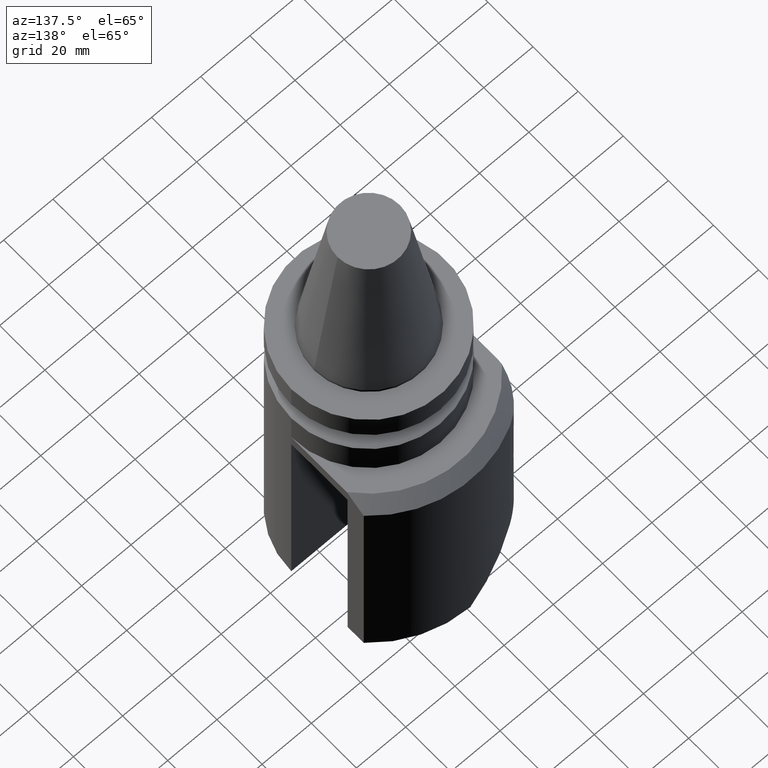
[diagram: clean part render]
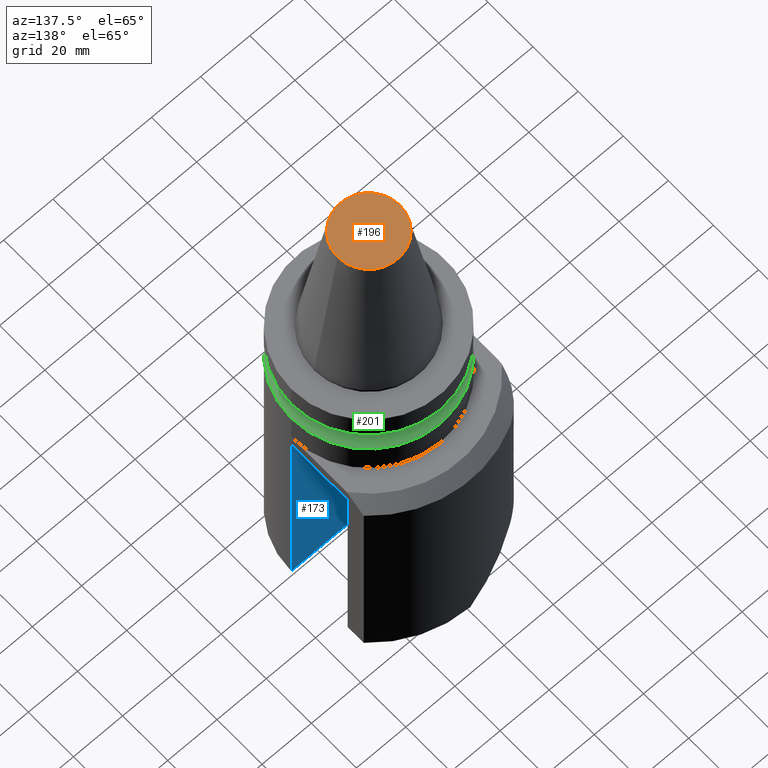
[diagram: same view with three faces highlighted in distinct colors, each labeled with its STEP entity id]
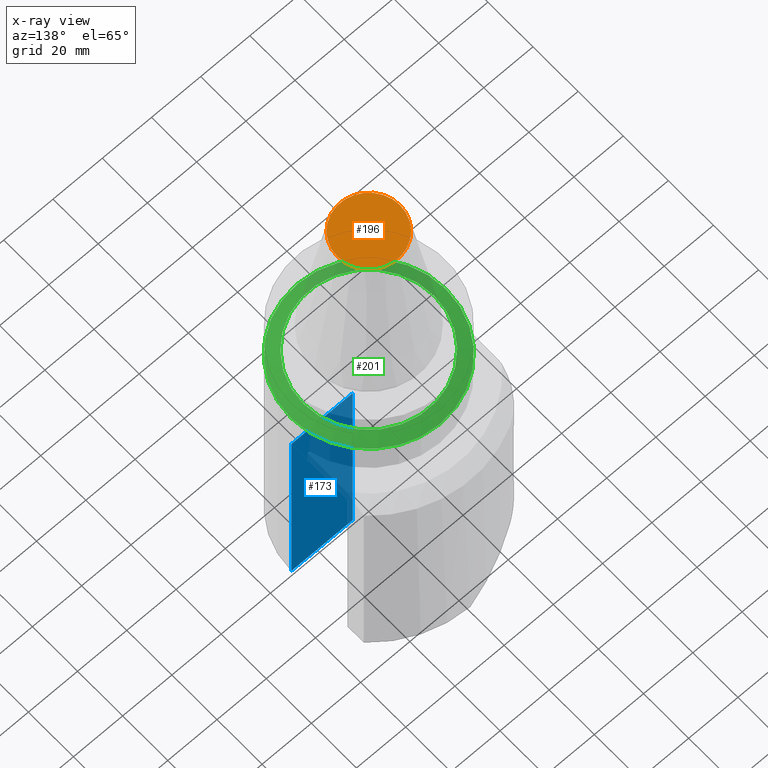
[diagram: x-ray of the same camera — body ghosted, the three highlighted faces saturated]
A machine part, auxiliary view with three faces highlighted in distinct colors.
The next image is the same camera in x-ray (body ghosted, the three faces saturated) — at least one of them is partly hidden behind the body in this view.
Their STEP definitions:

[orange] entity #196 — the highlighted planar face has unit normal (-0, 0, 1).
#186=EDGE_CURVE('240[2]',#391,#391,#392,.T.);
#196=ADVANCED_FACE('240[2]',(#405),#406,.T.);
#391=VERTEX_POINT('',#676);
#392=CIRCLE('',#677,12.6875000044926);
#405=FACE_OUTER_BOUND('',#694,.T.);
#406=PLANE('',#695);
#676=CARTESIAN_POINT('',(12.6875000044926,1.67393909275927E-015,65.4));
#677=AXIS2_PLACEMENT_3D('',#910,#911,#912);
#694=EDGE_LOOP('',(#931));
#695=AXIS2_PLACEMENT_3D('',#932,#933,#934);
#910=CARTESIAN_POINT('',(-8.00919006642369E-015,4.00459503321185E-015,65.4));
#911=DIRECTION('',(1.22464679914735E-016,-6.12323399573677E-017,-1.0));
#912=DIRECTION('',(1.0,-1.83697019872103E-016,1.22464679914735E-016));
#931=ORIENTED_EDGE('',*,*,#186,.F.);
#932=CARTESIAN_POINT('',(6.34375000224627,2.83926706298556E-015,65.4));
#933=DIRECTION('',(-4.59169004331693E-049,6.12323399573677E-017,1.0));
#934=DIRECTION('',(1.0,7.49879891330927E-033,0.0));

[blue] entity #173 — the highlighted planar face has unit normal (-0, -1, 0).
#99=EDGE_CURVE('240[2]',#272,#273,#274,.T.);
#137=EDGE_CURVE('240[2]',#261,#268,#328,.T.);
#173=ADVANCED_FACE('240[2]',(#375),#376,.F.);
#180=EDGE_CURVE('240[2]',#272,#268,#385,.T.);
#221=EDGE_CURVE('240[2]',#261,#273,#439,.T.);
#261=VERTEX_POINT('',#487);
#268=VERTEX_POINT('',#497);
#272=VERTEX_POINT('',#502);
#273=VERTEX_POINT('',#503);
#274=LINE('',#504,#505);
#328=LINE('',#587,#588);
#375=FACE_OUTER_BOUND('',#651,.T.);
#376=PLANE('',#652);
#385=LINE('',#665,#666);
#439=LINE('',#740,#741);
#487=CARTESIAN_POINT('',(31.5000056898272,-8.23575076947025E-015,-40.0));
#497=CARTESIAN_POINT('',(31.4999999979768,-1.37466603200574E-014,-130.0));
#502=CARTESIAN_POINT('',(6.50000568982719,-9.15423586883077E-015,-130.0));
#503=CARTESIAN_POINT('',(6.50000568982718,-3.64332527266767E-015,-40.0));
#504=CARTESIAN_POINT('',(6.50000568982719,-9.15423586883077E-015,-130.0));
#505=VECTOR('',#775,10.0);
#587=CARTESIAN_POINT('',(31.4999999979768,-1.37466603200574E-014,-130.0));
#588=VECTOR('',#835,10.0);
#651=EDGE_LOOP('',(#891,#892,#893,#894));
#652=AXIS2_PLACEMENT_3D('',#895,#896,#897);
#665=CARTESIAN_POINT('',(26.0000028449136,-1.27363272337346E-014,-130.0));
#666=VECTOR('',#905,10.0);
#740=CARTESIAN_POINT('',(31.5000056898272,-8.23575076947025E-015,-40.0));
#741=VECTOR('',#981,10.0);
#775=DIRECTION('',(-1.22464679914735E-016,6.12323399573677E-017,1.0));
#835=DIRECTION('',(1.22464679914735E-016,-6.12323399573677E-017,-1.0));
#891=ORIENTED_EDGE('',*,*,#180,.F.);
#892=ORIENTED_EDGE('',*,*,#99,.T.);
#893=ORIENTED_EDGE('',*,*,#221,.F.);
#894=ORIENTED_EDGE('',*,*,#137,.T.);
#895=CARTESIAN_POINT('',(31.5000056898272,-1.37466613656333E-014,-130.0));
#896=DIRECTION('',(-1.83697019872103E-016,-1.0,6.12323399573677E-017));
#897=DIRECTION('',(-1.0,1.83697019872103E-016,0.0));
#905=DIRECTION('',(1.0,-1.83697019872103E-016,1.22464679914735E-016));
#981=DIRECTION('',(-1.0,1.83697019872103E-016,-1.22464679914735E-016));

[green] entity #201 — the highlighted conical surface has half-angle 60 deg.
#193=EDGE_CURVE('240[2]',#401,#401,#402,.T.);
#201=ADVANCED_FACE('240[2]',(#412,#413),#414,.T.);
#230=EDGE_CURVE('240[2]',#449,#449,#450,.T.);
#401=VERTEX_POINT('',#689);
#402=CIRCLE('',#690,26.5);
#412=FACE_BOUND('',#703,.T.);
#413=FACE_BOUND('',#704,.T.);
#414=CONICAL_SURFACE('',#705,29.0,1.04719755058882);
#449=VERTEX_POINT('',#756);
#450=CIRCLE('',#757,31.5);
#689=CARTESIAN_POINT('',(26.5,-6.01382702965428E-015,-18.71324865));
#690=AXIS2_PLACEMENT_3D('',#927,#928,#929);
#703=EDGE_LOOP('',(#939));
#704=EDGE_LOOP('',(#940));
#705=AXIS2_PLACEMENT_3D('',#941,#942,#943);
#756=CARTESIAN_POINT('',(-31.5000000001728,4.46383758291774E-015,-21.6000000000998));
#757=AXIS2_PLACEMENT_3D('',#997,#998,#999);
#927=CARTESIAN_POINT('',(2.2917120060871E-015,-1.14585600304355E-015,-18.71324865));
#928=DIRECTION('',(1.22464679914735E-016,-6.12323399573677E-017,-1.0));
#929=DIRECTION('',(1.0,-1.83697019872103E-016,1.22464679914735E-016));
#939=ORIENTED_EDGE('',*,*,#230,.F.);
#940=ORIENTED_EDGE('',*,*,#193,.T.);
#941=CARTESIAN_POINT('',(2.46847454612269E-015,-1.23423727306135E-015,-20.156624325));
#942=DIRECTION('',(1.22464679914735E-016,-6.12323399573677E-017,-1.0));
#943=DIRECTION('',(1.0,-1.83697019872103E-016,1.22464679914735E-016));
#997=CARTESIAN_POINT('',(2.64523708615828E-015,-1.32261854307914E-015,-21.6));
#998=DIRECTION('',(1.22464679914735E-016,-6.12323399573677E-017,-1.0));
#999=DIRECTION('',(1.0,-1.83697019872103E-016,1.22464679914735E-016));